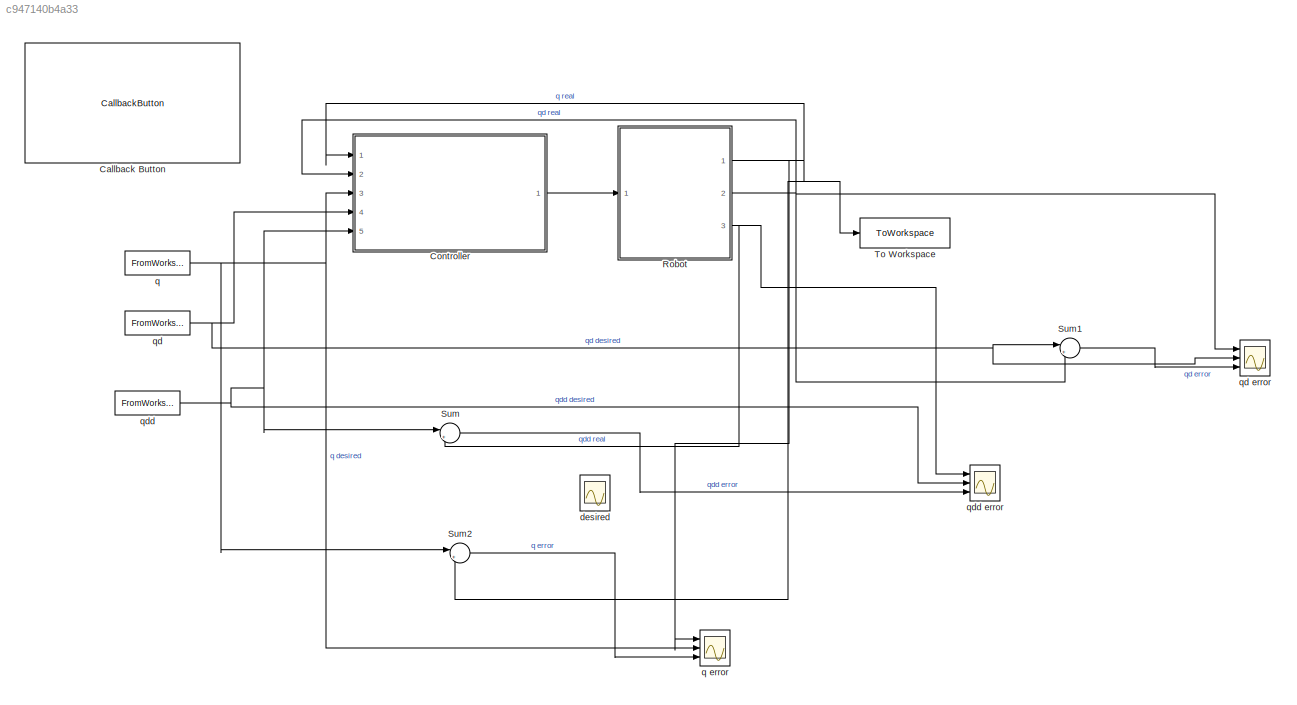
MODEL slx_c947140b4a33
KIND model
CONFIG AbsTol = auto
CONFIG EnableMultiTasking = off
CONFIG FixedStep = auto
CONFIG MaxStep = auto
CONFIG MinStep = auto
CONFIG RelTol = 1e-3
CONFIG SampleTimeConstraint = Unconstrained
CONFIG Solver = VariableStepAuto
CONFIG SolverName = VariableStepAuto
CONFIG StartTime = 0.0
CONFIG StopTime = 16
BLOCK [CallbackButton] Callback Button
  ButtonText = Load_data
  ClickFcn = clear\nclc\n\n%%\n\nrootDir = fileparts(which(mfilename));\naddpath(genpath('matlab'),genpath('simulink'),genpath('utilities'));\n\nload e5\n\ne5waypoints;\n\neeName='elfin_end_link';\nnumJoints = numel(e5.homeConfiguration);\n% ikInitGuess = [-1.1829    0.8498    2.3262    0.0000   -1.4764    1.1829];\nikInitGuess=[-0.5276    0.7811   -1.7791   -0.0000    2.5600    0.5276];\ntform = getTransform(e5,ikInitGuess,e...<+1775ch>
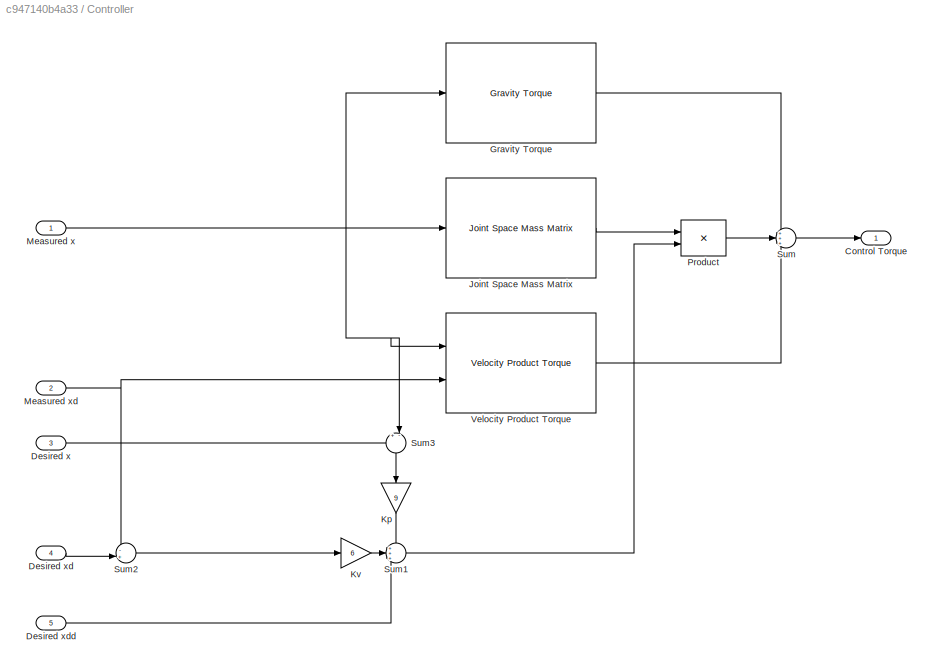
BLOCK [SubSystem] Controller
  Ports = [5, 1]
  RequestExecContextInheritance = off
BLOCK [Outport] Controller/Control Torque
BLOCK [Inport] Controller/Desired x
  Port = 3
BLOCK [Inport] Controller/Desired xd
  Port = 4
BLOCK [Inport] Controller/Desired xdd
  Port = 5
BLOCK [Reference] Controller/Gravity Torque  REF=robotmaniplib/Gravity Torque
  Ports = [1, 1]
  SourceBlock = robotmaniplib/Gravity Torque
  SourceProductBaseCode = RO
  SourceType = Gravity Torque
BLOCK [Reference] Controller/Joint Space Mass Matrix  REF=robotmaniplib/Joint Space Mass Matrix
  Ports = [1, 1]
  SourceBlock = robotmaniplib/Joint Space Mass Matrix
  SourceProductBaseCode = RO
  SourceType = Joint Space Mass Matrix
BLOCK [Gain] Controller/Kp
  Gain = 9
  NameLocation = left
BLOCK [Gain] Controller/Kv
  Gain = 6
BLOCK [Inport] Controller/Measured x
BLOCK [Inport] Controller/Measured xd
  Port = 2
BLOCK [Product] Controller/Product
  Multiplication = Matrix(*)
  Ports = [2, 1]
BLOCK [Sum] Controller/Sum
  Inputs = +++
  Ports = [3, 1]
BLOCK [Sum] Controller/Sum1
  Inputs = +++
  Ports = [3, 1]
BLOCK [Sum] Controller/Sum2
  Inputs = -+|
  Ports = [2, 1]
BLOCK [Sum] Controller/Sum3
  Inputs = +-|
  NameLocation = left
  Ports = [2, 1]
BLOCK [Reference] Controller/Velocity Product Torque  REF=robotmaniplib/Velocity Product Torque
  Ports = [2, 1]
  SourceBlock = robotmaniplib/Velocity Product Torque
  SourceProductBaseCode = RO
  SourceType = Velocity Product Torque
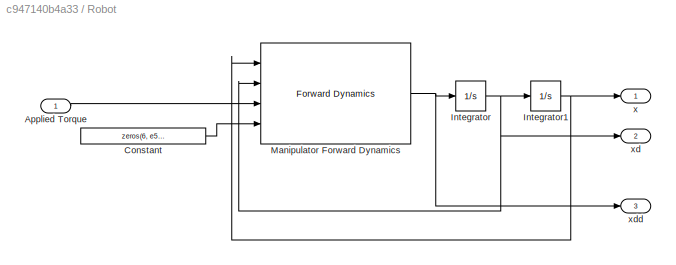
BLOCK [SubSystem] Robot
  Ports = [1, 3]
  RequestExecContextInheritance = off
BLOCK [Inport] Robot/Applied Torque
BLOCK [Constant] Robot/Constant
  Value = zeros(6, e5.NumBodies)
BLOCK [Integrator] Robot/Integrator
  Ports = [1, 1]
BLOCK [Integrator] Robot/Integrator1
  InitialCondition = q(:,1)
  Ports = [1, 1]
BLOCK [Reference] Robot/Manipulator Forward Dynamics  REF=robotmaniplib/Forward Dynamics
  Ports = [4, 1]
  SourceBlock = robotmaniplib/Forward Dynamics
  SourceProductBaseCode = RO
  SourceType = Forward Dynamics
BLOCK [Outport] Robot/x
BLOCK [Outport] Robot/xd
  Port = 2
BLOCK [Outport] Robot/xdd
  Port = 3
BLOCK [Sum] Sum
  Inputs = |+-
  Ports = [2, 1]
BLOCK [Sum] Sum1
  Inputs = |+-
  Ports = [2, 1]
BLOCK [Sum] Sum2
  Inputs = |+-
  Ports = [2, 1]
BLOCK [ToWorkspace] To Workspace
  FixptAsFi = on
  MaxDataPoints = inf
  Ports = [1]
  SampleTime = -1
  SaveFormat = Timeseries
  VariableName = cfg
BLOCK [Scope] desired
  Floating = off
  NumInputPorts = 1
  Ports = [1]
  ScopeSpecificationString = Simulink.scopes.TimeScopeBlockCfg('CurrentConfiguration', extmgr.ConfigurationSet(extmgr.Configuration('Core','General UI',true,'FigureColor',[1 1 1]),extmgr.Configuration('Core','Source UI',true),extmgr.Configuration('Sources','WiredSimulink',true,'DataLoggingVariableName','ScopeData1'),extmgr.Configuration('Visuals','Time Domain',true,'SerializedDisplays',{struct('MinYLimReal','-2.32149','MaxYLi...<+3173ch>
BLOCK [FromWorkspace] q
  SampleTime = 0.05
  VariableName = [trajTimes',q']
BLOCK [Scope] q error
  Floating = off
  NumInputPorts = 3
  Ports = [3]
  ScopeSpecificationString = Simulink.scopes.TimeScopeBlockCfg('CurrentConfiguration', extmgr.ConfigurationSet(extmgr.Configuration('Core','General UI',true,'FigureColor',[1 1 1]),extmgr.Configuration('Core','Source UI',true),extmgr.Configuration('Sources','WiredSimulink',true,'DataLoggingVariableName','ScopeData2'),extmgr.Configuration('Visuals','Time Domain',true,'SerializedDisplays',{struct('MinYLimReal','-2.27987','MaxYLi...<+6378ch>
BLOCK [FromWorkspace] qd
  SampleTime = 0.05
  VariableName = [trajTimes',qd']
BLOCK [Scope] qd error 
  Floating = off
  NumInputPorts = 3
  Ports = [3]
  ScopeSpecificationString = Simulink.scopes.TimeScopeBlockCfg('CurrentConfiguration', extmgr.ConfigurationSet(extmgr.Configuration('Core','General UI',true,'FigureColor',[1 1 1]),extmgr.Configuration('Core','Source UI',true),extmgr.Configuration('Sources','WiredSimulink',true,'DataLoggingVariableName','ScopeData1'),extmgr.Configuration('Visuals','Time Domain',true,'SerializedDisplays',{struct('MinYLimReal','-1.07948','MaxYLi...<+6396ch>
BLOCK [FromWorkspace] qdd
  SampleTime = 0.05
  VariableName = [trajTimes',qdd']
BLOCK [Scope] qdd error
  Floating = off
  NumInputPorts = 3
  Ports = [3]
  ScopeSpecificationString = Simulink.scopes.TimeScopeBlockCfg('CurrentConfiguration', extmgr.ConfigurationSet(extmgr.Configuration('Core','General UI',true,'FigureColor',[1 1 1]),extmgr.Configuration('Core','Source UI',true),extmgr.Configuration('Sources','WiredSimulink',true,'DataLoggingVariableName','ScopeData3'),extmgr.Configuration('Visuals','Time Domain',true,'SerializedDisplays',{struct('MinYLimReal','-0.9156','MaxYLim...<+6402ch>
LINE Controller/Desired x:1 -> Controller/Sum3:1
LINE Controller/Desired xd:1 -> Controller/Sum2:2
LINE Controller/Desired xdd:1 -> Controller/Sum1:3
LINE Controller/Gravity Torque:1 -> Controller/Sum:1
LINE Controller/Joint Space Mass Matrix:1 -> Controller/Product:1
LINE Controller/Kp:1 -> Controller/Sum1:1
LINE Controller/Kv:1 -> Controller/Sum1:2
NET Controller/Measured x:1 -> Controller/Gravity Torque:1, Controller/Joint Space Mass Matrix:1, Controller/Sum3:2, Controller/Velocity Product Torque:1
NET Controller/Measured xd:1 -> Controller/Sum2:1, Controller/Velocity Product Torque:2
LINE Controller/Product:1 -> Controller/Sum:2
LINE Controller/Sum1:1 -> Controller/Product:2
LINE Controller/Sum2:1 -> Controller/Kv:1
LINE Controller/Sum3:1 -> Controller/Kp:1
LINE Controller/Sum:1 -> Controller/Control Torque:1
LINE Controller/Velocity Product Torque:1 -> Controller/Sum:3
LINE Controller:1 -> Robot:1
LINE Robot/Applied Torque:1 -> Robot/Manipulator Forward Dynamics:3
LINE Robot/Constant:1 -> Robot/Manipulator Forward Dynamics:4
NET Robot/Integrator1:1 -> Robot/Manipulator Forward Dynamics:1, Robot/x:1
NET Robot/Integrator:1 -> Robot/Integrator1:1, Robot/Manipulator Forward Dynamics:2, Robot/xd:1
NET Robot/Manipulator Forward Dynamics:1 -> Robot/Integrator:1, Robot/xdd:1
NET Robot:1 -> Controller:1, Sum2:2, To Workspace:1, q error:1
NET Robot:2 -> Controller:2, Sum1:2, qd error :1
NET Robot:3 -> Sum:2, qdd error:1
LINE Sum1:1 -> qd error :3
LINE Sum2:1 -> q error:3
LINE Sum:1 -> qdd error:3
NET q:1 -> Controller:3, Sum2:1, q error:2
NET qd:1 -> Controller:4, Sum1:1, qd error :2
NET qdd:1 -> Controller:5, Sum:1, qdd error:2
note: NET lines group one-source signal fan-out (src -> all destinations, sorted); 1:1 wires keep LINE
